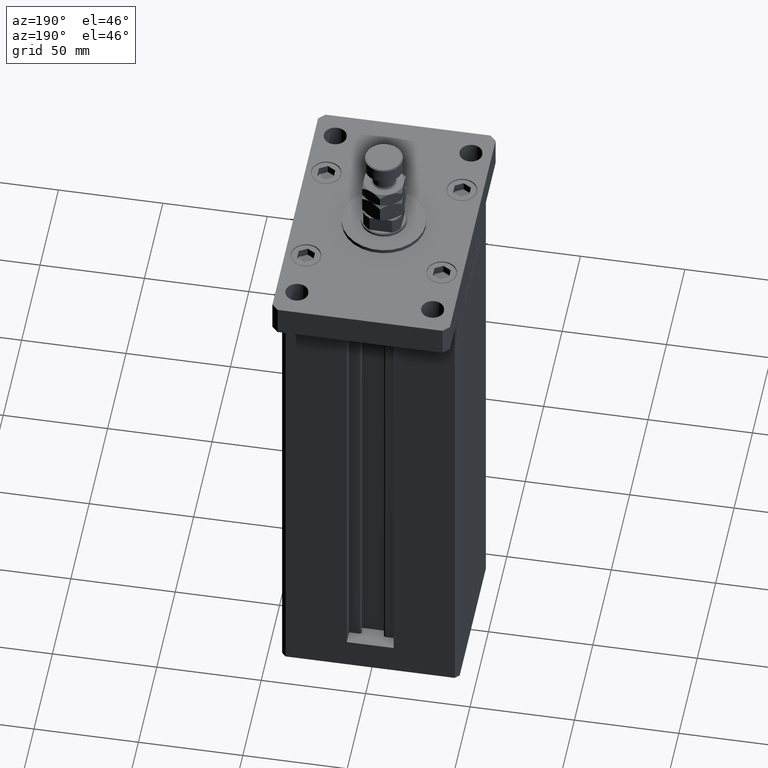
[diagram: clean part render]
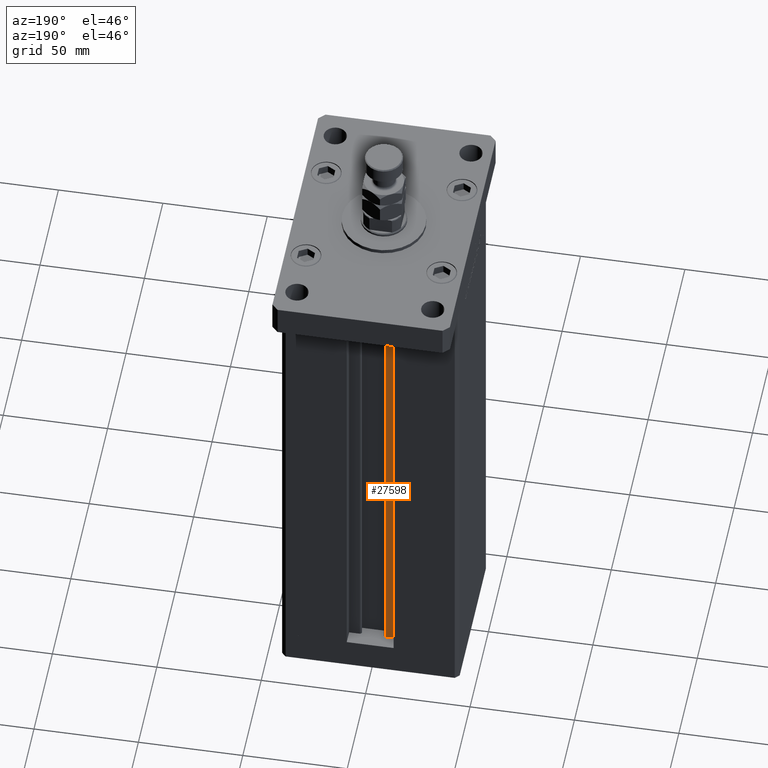
[diagram: same view with one face highlighted and labeled with its STEP entity id]
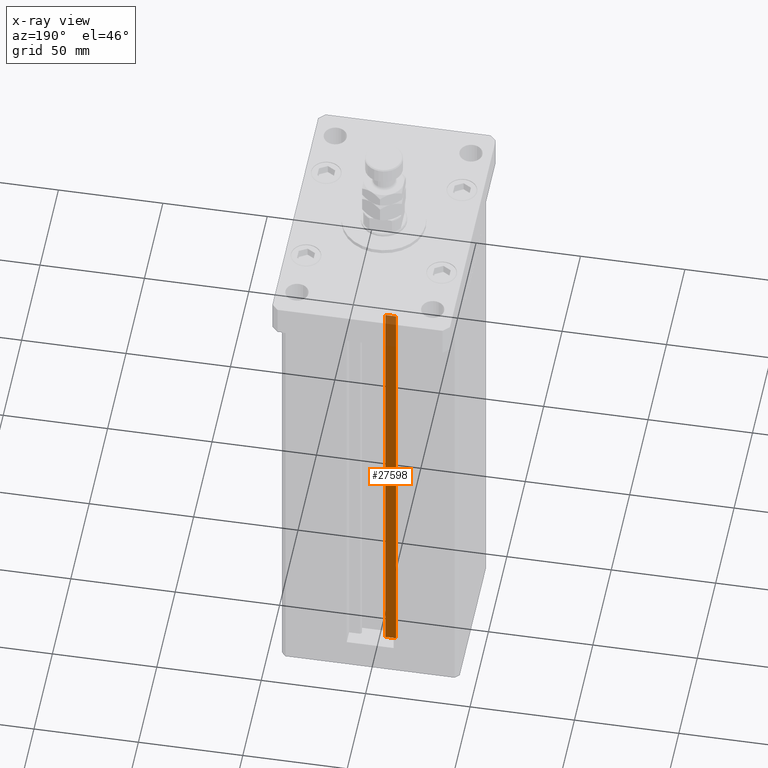
[diagram: x-ray of the same camera — body ghosted, the highlighted face saturated]
A machine part, auxiliary view. The second image highlights one B-rep face of the part: STEP entity #27598.
The next image is the same camera in x-ray: the body ghosted, the highlighted face saturated — about 9% of this face is hidden behind the body in this view.
In plain terms, the highlighted planar face has unit normal (0, -1, 0).
Its self-contained STEP definition (entity closure, byte-faithful):
#1935 = ORIENTED_EDGE ( 'NONE', *, *, #47305, .F. ) ;
#2270 = DIRECTION ( 'NONE',  ( 0.000000000000000000, 0.000000000000000000, -1.000000000000000000 ) ) ;
#2626 = LINE ( 'NONE', #32802, #28820 ) ;
#6614 = VERTEX_POINT ( 'NONE', #19063 ) ;
#8619 = DIRECTION ( 'NONE',  ( -0.000000000000000000, -0.000000000000000000, 1.000000000000000000 ) ) ;
#9603 = CARTESIAN_POINT ( 'NONE',  ( -6.183333333333999704, 30.99999999999999289, 0.000000000000000000 ) ) ;
#10020 = VECTOR ( 'NONE', #8619, 1000.000000000000000 ) ;
#14843 = CARTESIAN_POINT ( 'NONE',  ( -6.183333333333999704, 30.99999999999999289, 0.000000000000000000 ) ) ;
#19063 = CARTESIAN_POINT ( 'NONE',  ( -6.183333333333999704, 30.99999999999999289, 218.5000000000000000 ) ) ;
#19653 = DIRECTION ( 'NONE',  ( 1.000000000000000000, -0.000000000000000000, -0.000000000000000000 ) ) ;
#20169 = EDGE_CURVE ( 'NONE', #49928, #29311, #29574, .T. ) ;
#21079 = LINE ( 'NONE', #28915, #32569 ) ;
#24179 = ORIENTED_EDGE ( 'NONE', *, *, #20169, .T. ) ;
#24620 = FACE_OUTER_BOUND ( 'NONE', #50545, .T. ) ;
#25767 = EDGE_CURVE ( 'NONE', #49928, #31022, #2626, .T. ) ;
#26233 = AXIS2_PLACEMENT_3D ( 'NONE', #14843, #48946, #2270 ) ;
#27598 = ADVANCED_FACE ( 'NONE', ( #24620 ), #41669, .F. ) ;
#28777 = CARTESIAN_POINT ( 'NONE',  ( -11.25000000000000000, 30.99999999999999289, 218.5000000000000000 ) ) ;
#28820 = VECTOR ( 'NONE', #19653, 1000.000000000000000 ) ;
#28915 = CARTESIAN_POINT ( 'NONE',  ( -6.183333333333999704, 30.99999999999999289, 0.000000000000000000 ) ) ;
#29311 = VERTEX_POINT ( 'NONE', #28777 ) ;
#29574 = LINE ( 'NONE', #30123, #10020 ) ;
#30123 = CARTESIAN_POINT ( 'NONE',  ( -11.25000000000000000, 30.99999999999999289, 0.000000000000000000 ) ) ;
#31022 = VERTEX_POINT ( 'NONE', #9603 ) ;
#31819 = ORIENTED_EDGE ( 'NONE', *, *, #46181, .F. ) ;
#32569 = VECTOR ( 'NONE', #38139, 1000.000000000000000 ) ;
#32802 = CARTESIAN_POINT ( 'NONE',  ( -6.183333333333999704, 30.99999999999999289, 0.000000000000000000 ) ) ;
#36136 = VECTOR ( 'NONE', #53301, 1000.000000000000000 ) ;
#36528 = CARTESIAN_POINT ( 'NONE',  ( 0.000000000000000000, 30.99999999999999289, 218.5000000000000000 ) ) ;
#37831 = ORIENTED_EDGE ( 'NONE', *, *, #25767, .F. ) ;
#38139 = DIRECTION ( 'NONE',  ( -0.000000000000000000, -0.000000000000000000, 1.000000000000000000 ) ) ;
#41669 = PLANE ( 'NONE',  #26233 ) ;
#44574 = CARTESIAN_POINT ( 'NONE',  ( -11.25000000000000000, 30.99999999999999289, 0.000000000000000000 ) ) ;
#46181 = EDGE_CURVE ( 'NONE', #6614, #29311, #53575, .T. ) ;
#47305 = EDGE_CURVE ( 'NONE', #31022, #6614, #21079, .T. ) ;
#48946 = DIRECTION ( 'NONE',  ( 0.000000000000000000, -1.000000000000000000, -0.000000000000000000 ) ) ;
#49928 = VERTEX_POINT ( 'NONE', #44574 ) ;
#50545 = EDGE_LOOP ( 'NONE', ( #1935, #37831, #24179, #31819 ) ) ;
#53301 = DIRECTION ( 'NONE',  ( -1.000000000000000000, 0.000000000000000000, 0.000000000000000000 ) ) ;
#53575 = LINE ( 'NONE', #36528, #36136 ) ;